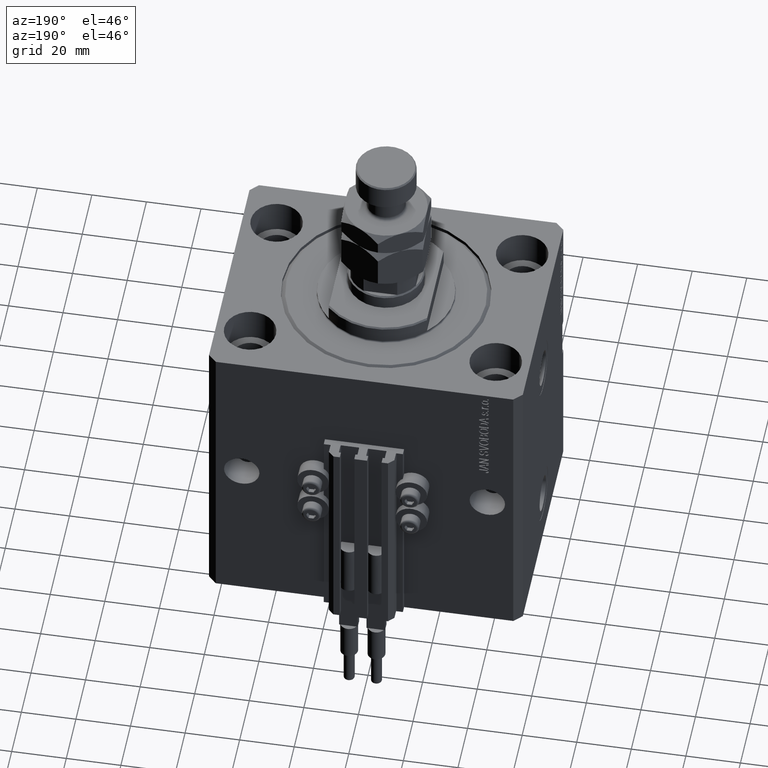
[diagram: clean part render]
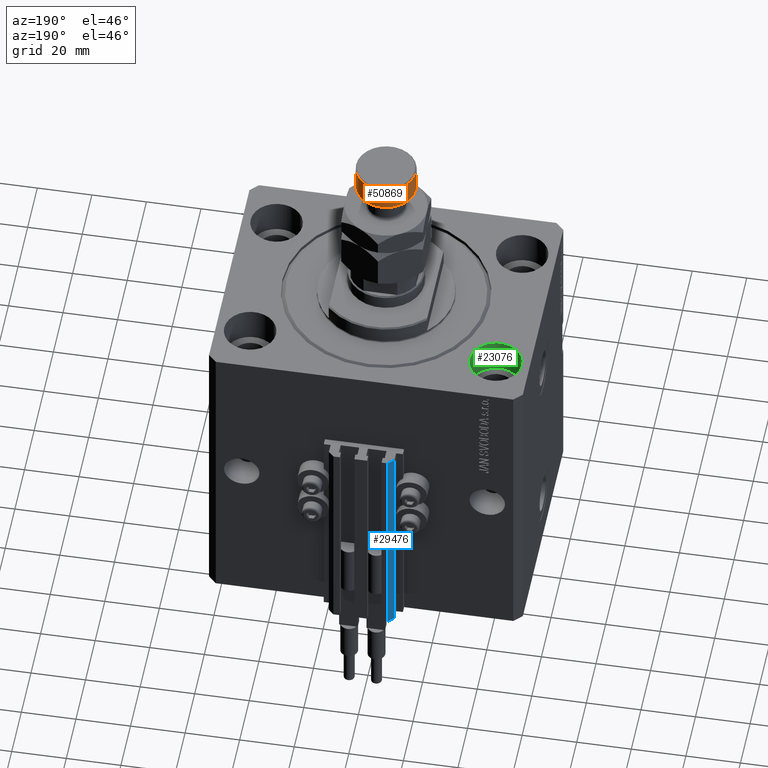
[diagram: same view with three faces highlighted in distinct colors, each labeled with its STEP entity id]
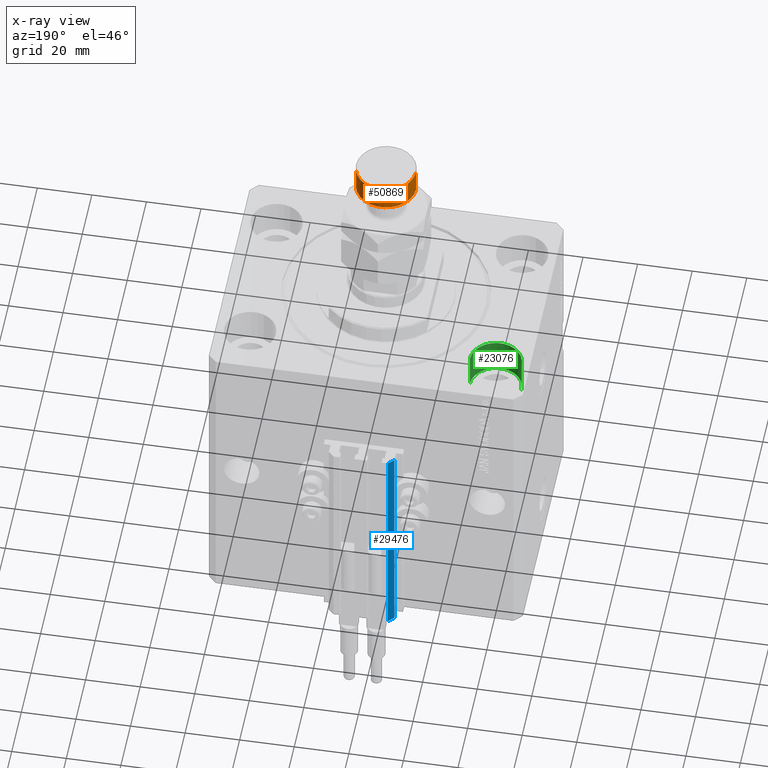
[diagram: x-ray of the same camera — body ghosted, the three highlighted faces saturated]
A machine part, auxiliary view with three faces highlighted in distinct colors.
The next image is the same camera in x-ray (body ghosted, the three faces saturated) — at least one of them is partly hidden behind the body in this view.
Their STEP definitions:

[orange] entity #50869 — the highlighted cylindrical surface (edge-blend (fillet) strip) has radius 11 mm, axis along (-0, -0, -1).
#2456 = DIRECTION ( 'NONE',  ( -1.000000000000000000, 0.000000000000000000, 0.000000000000000000 ) ) ;
#2924 = VERTEX_POINT ( 'NONE', #29450 ) ;
#5287 = CARTESIAN_POINT ( 'NONE',  ( -11.00000000000000000, 0.000000000000000000, 45.00000000000000711 ) ) ;
#5729 = EDGE_CURVE ( 'NONE', #26223, #48252, #50080, .T. ) ;
#5868 = CARTESIAN_POINT ( 'NONE',  ( 0.000000000000000000, 0.000000000000000000, 45.00000000000000711 ) ) ;
#6184 = CARTESIAN_POINT ( 'NONE',  ( 11.00000000000000000, 1.347111479062088405E-15, 45.00000000000000711 ) ) ;
#7854 = AXIS2_PLACEMENT_3D ( 'NONE', #13892, #14156, #46532 ) ;
#8702 = CIRCLE ( 'NONE', #7854, 11.00000000000000000 ) ;
#9359 = EDGE_CURVE ( 'NONE', #48252, #2924, #11202, .T. ) ;
#10128 = DIRECTION ( 'NONE',  ( -0.000000000000000000, -0.000000000000000000, -1.000000000000000000 ) ) ;
#10839 = DIRECTION ( 'NONE',  ( -0.000000000000000000, -0.000000000000000000, -1.000000000000000000 ) ) ;
#11202 = CIRCLE ( 'NONE', #25357, 11.00000000000000000 ) ;
#12125 = CARTESIAN_POINT ( 'NONE',  ( 0.000000000000000000, 0.000000000000000000, 35.50000000000001421 ) ) ;
#13892 = CARTESIAN_POINT ( 'NONE',  ( 0.000000000000000000, 0.000000000000000000, 44.50000000000001421 ) ) ;
#14156 = DIRECTION ( 'NONE',  ( 0.000000000000000000, 0.000000000000000000, -1.000000000000000000 ) ) ;
#19050 = VECTOR ( 'NONE', #49458, 1000.000000000000000 ) ;
#21493 = EDGE_CURVE ( 'NONE', #24916, #26223, #8702, .T. ) ;
#21820 = CYLINDRICAL_SURFACE ( 'NONE', #24302, 11.00000000000000000 ) ;
#23952 = CARTESIAN_POINT ( 'NONE',  ( 11.00000000000000000, 1.347111479062088405E-15, 35.50000000000001421 ) ) ;
#24302 = AXIS2_PLACEMENT_3D ( 'NONE', #5868, #10839, #2456 ) ;
#24916 = VERTEX_POINT ( 'NONE', #36729 ) ;
#25224 = ORIENTED_EDGE ( 'NONE', *, *, #9359, .T. ) ;
#25357 = AXIS2_PLACEMENT_3D ( 'NONE', #12125, #27016, #43989 ) ;
#25416 = LINE ( 'NONE', #5287, #19050 ) ;
#26223 = VERTEX_POINT ( 'NONE', #31416 ) ;
#26580 = EDGE_LOOP ( 'NONE', ( #26888, #28467, #25224, #37388 ) ) ;
#26888 = ORIENTED_EDGE ( 'NONE', *, *, #21493, .T. ) ;
#27016 = DIRECTION ( 'NONE',  ( -0.000000000000000000, -0.000000000000000000, 1.000000000000000000 ) ) ;
#28467 = ORIENTED_EDGE ( 'NONE', *, *, #5729, .T. ) ;
#29450 = CARTESIAN_POINT ( 'NONE',  ( -11.00000000000000000, 0.000000000000000000, 35.50000000000001421 ) ) ;
#31416 = CARTESIAN_POINT ( 'NONE',  ( 11.00000000000000000, 1.347111479062088405E-15, 44.50000000000001421 ) ) ;
#33576 = VECTOR ( 'NONE', #10128, 1000.000000000000000 ) ;
#36729 = CARTESIAN_POINT ( 'NONE',  ( -11.00000000000000000, 0.000000000000000000, 44.50000000000001421 ) ) ;
#37388 = ORIENTED_EDGE ( 'NONE', *, *, #44717, .F. ) ;
#41662 = FACE_OUTER_BOUND ( 'NONE', #26580, .T. ) ;
#43989 = DIRECTION ( 'NONE',  ( 1.000000000000000000, 0.000000000000000000, 0.000000000000000000 ) ) ;
#44717 = EDGE_CURVE ( 'NONE', #24916, #2924, #25416, .T. ) ;
#46532 = DIRECTION ( 'NONE',  ( 1.000000000000000000, 0.000000000000000000, 0.000000000000000000 ) ) ;
#48252 = VERTEX_POINT ( 'NONE', #23952 ) ;
#49458 = DIRECTION ( 'NONE',  ( -0.000000000000000000, -0.000000000000000000, -1.000000000000000000 ) ) ;
#50080 = LINE ( 'NONE', #6184, #33576 ) ;
#50869 = ADVANCED_FACE ( 'NONE', ( #41662 ), #21820, .T. ) ;

[blue] entity #29476 — the highlighted planar face has unit normal (-0.7071, 0.7071, 0).
#3465 = ORIENTED_EDGE ( 'NONE', *, *, #40092, .T. ) ;
#3688 = EDGE_CURVE ( 'NONE', #42839, #19992, #20849, .T. ) ;
#4495 = ORIENTED_EDGE ( 'NONE', *, *, #17345, .F. ) ;
#4650 = CARTESIAN_POINT ( 'NONE',  ( -10.00000000000000000, 52.99999999999999289, -115.0000000000000000 ) ) ;
#5110 = VECTOR ( 'NONE', #32356, 999.9999999999998863 ) ;
#5411 = LINE ( 'NONE', #21116, #18481 ) ;
#6003 = VECTOR ( 'NONE', #21075, 1000.000000000000000 ) ;
#7705 = DIRECTION ( 'NONE',  ( 0.000000000000000000, 0.000000000000000000, 1.000000000000000000 ) ) ;
#9598 = CARTESIAN_POINT ( 'NONE',  ( -12.00000000000000000, 50.99999999999999289, -115.0000000000000000 ) ) ;
#11909 = PLANE ( 'NONE',  #51439 ) ;
#14271 = ORIENTED_EDGE ( 'NONE', *, *, #3688, .T. ) ;
#16407 = LINE ( 'NONE', #48264, #6003 ) ;
#17345 = EDGE_CURVE ( 'NONE', #42839, #21765, #16407, .T. ) ;
#18481 = VECTOR ( 'NONE', #37044, 999.9999999999998863 ) ;
#19992 = VERTEX_POINT ( 'NONE', #9598 ) ;
#20696 = CARTESIAN_POINT ( 'NONE',  ( -10.00000000000000000, 52.99999999999999289, -115.0000000000000000 ) ) ;
#20849 = LINE ( 'NONE', #4650, #5110 ) ;
#21075 = DIRECTION ( 'NONE',  ( 0.000000000000000000, 0.000000000000000000, 1.000000000000000000 ) ) ;
#21116 = CARTESIAN_POINT ( 'NONE',  ( -10.00000000000000000, 52.99999999999999289, -33.00000000000000000 ) ) ;
#21765 = VERTEX_POINT ( 'NONE', #35354 ) ;
#26144 = VERTEX_POINT ( 'NONE', #42924 ) ;
#29476 = ADVANCED_FACE ( 'NONE', ( #31213 ), #11909, .T. ) ;
#31213 = FACE_OUTER_BOUND ( 'NONE', #41632, .T. ) ;
#32356 = DIRECTION ( 'NONE',  ( -0.7071067811865472397, -0.7071067811865479058, 0.000000000000000000 ) ) ;
#35354 = CARTESIAN_POINT ( 'NONE',  ( -10.00000000000000000, 52.99999999999999289, -33.00000000000000000 ) ) ;
#35405 = DIRECTION ( 'NONE',  ( -0.7071067811865477948, 0.7071067811865473507, 0.000000000000000000 ) ) ;
#35569 = VECTOR ( 'NONE', #7705, 1000.000000000000000 ) ;
#35644 = LINE ( 'NONE', #40064, #35569 ) ;
#37044 = DIRECTION ( 'NONE',  ( -0.7071067811865472397, -0.7071067811865479058, 0.000000000000000000 ) ) ;
#40064 = CARTESIAN_POINT ( 'NONE',  ( -12.00000000000000000, 50.99999999999999289, -115.0000000000000000 ) ) ;
#40092 = EDGE_CURVE ( 'NONE', #19992, #26144, #35644, .T. ) ;
#41632 = EDGE_LOOP ( 'NONE', ( #43192, #4495, #14271, #3465 ) ) ;
#42839 = VERTEX_POINT ( 'NONE', #20696 ) ;
#42924 = CARTESIAN_POINT ( 'NONE',  ( -12.00000000000000000, 50.99999999999999289, -33.00000000000000000 ) ) ;
#43192 = ORIENTED_EDGE ( 'NONE', *, *, #51665, .F. ) ;
#43510 = CARTESIAN_POINT ( 'NONE',  ( -10.00000000000000000, 52.99999999999999289, -115.0000000000000000 ) ) ;
#48264 = CARTESIAN_POINT ( 'NONE',  ( -10.00000000000000000, 52.99999999999999289, -115.0000000000000000 ) ) ;
#51357 = DIRECTION ( 'NONE',  ( -0.7071067811865473507, -0.7071067811865477948, 0.000000000000000000 ) ) ;
#51439 = AXIS2_PLACEMENT_3D ( 'NONE', #43510, #35405, #51357 ) ;
#51665 = EDGE_CURVE ( 'NONE', #21765, #26144, #5411, .T. ) ;

[green] entity #23076 — the highlighted cylindrical surface (edge-blend (fillet) strip) has radius 9.5 mm, axis along (0, 0, 1).
#698 = CARTESIAN_POINT ( 'NONE',  ( -45.00000000000000000, 27.50000000000000355, 0.000000000000000000 ) ) ;
#1764 = ORIENTED_EDGE ( 'NONE', *, *, #41985, .F. ) ;
#5550 = VERTEX_POINT ( 'NONE', #11218 ) ;
#5698 = DIRECTION ( 'NONE',  ( -0.000000000000000000, -0.000000000000000000, 1.000000000000000000 ) ) ;
#6356 = EDGE_LOOP ( 'NONE', ( #22237, #21511, #47865, #1764 ) ) ;
#7238 = CARTESIAN_POINT ( 'NONE',  ( -54.50000000000000000, 27.50000000000000355, 0.000000000000000000 ) ) ;
#8137 = CYLINDRICAL_SURFACE ( 'NONE', #44593, 9.500000000000001776 ) ;
#8373 = CARTESIAN_POINT ( 'NONE',  ( -35.50000000000000000, 27.50000000000000355, -13.00000000000000000 ) ) ;
#9759 = VECTOR ( 'NONE', #5698, 1000.000000000000000 ) ;
#11218 = CARTESIAN_POINT ( 'NONE',  ( -35.50000000000000000, 27.50000000000000355, 0.000000000000000000 ) ) ;
#12059 = FACE_OUTER_BOUND ( 'NONE', #6356, .T. ) ;
#13035 = LINE ( 'NONE', #37577, #9759 ) ;
#15207 = DIRECTION ( 'NONE',  ( -0.000000000000000000, -0.000000000000000000, 1.000000000000000000 ) ) ;
#20574 = DIRECTION ( 'NONE',  ( 1.000000000000000000, 0.000000000000000000, 0.000000000000000000 ) ) ;
#21511 = ORIENTED_EDGE ( 'NONE', *, *, #40851, .T. ) ;
#22237 = ORIENTED_EDGE ( 'NONE', *, *, #48851, .F. ) ;
#23076 = ADVANCED_FACE ( 'NONE', ( #12059 ), #8137, .F. ) ;
#23308 = CIRCLE ( 'NONE', #29951, 9.500000000000001776 ) ;
#26944 = CARTESIAN_POINT ( 'NONE',  ( -45.00000000000000000, 27.50000000000000355, -13.00000000000000000 ) ) ;
#29951 = AXIS2_PLACEMENT_3D ( 'NONE', #698, #51435, #20574 ) ;
#30024 = CIRCLE ( 'NONE', #47585, 9.500000000000001776 ) ;
#30859 = DIRECTION ( 'NONE',  ( 0.000000000000000000, 0.000000000000000000, 1.000000000000000000 ) ) ;
#32477 = CARTESIAN_POINT ( 'NONE',  ( -54.50000000000000000, 27.50000000000000355, -13.00000000000000000 ) ) ;
#37577 = CARTESIAN_POINT ( 'NONE',  ( -35.50000000000000000, 27.50000000000000355, -13.00000000000000000 ) ) ;
#37678 = DIRECTION ( 'NONE',  ( 1.000000000000000000, 0.000000000000000000, 0.000000000000000000 ) ) ;
#37855 = VERTEX_POINT ( 'NONE', #7238 ) ;
#38962 = DIRECTION ( 'NONE',  ( 1.000000000000000000, 0.000000000000000000, 0.000000000000000000 ) ) ;
#40071 = LINE ( 'NONE', #32477, #49775 ) ;
#40851 = EDGE_CURVE ( 'NONE', #41089, #37855, #40071, .T. ) ;
#41089 = VERTEX_POINT ( 'NONE', #44636 ) ;
#41985 = EDGE_CURVE ( 'NONE', #46915, #5550, #13035, .T. ) ;
#43494 = DIRECTION ( 'NONE',  ( -0.000000000000000000, -0.000000000000000000, 1.000000000000000000 ) ) ;
#44593 = AXIS2_PLACEMENT_3D ( 'NONE', #26944, #15207, #38962 ) ;
#44636 = CARTESIAN_POINT ( 'NONE',  ( -54.50000000000000000, 27.50000000000000355, -13.00000000000000000 ) ) ;
#46915 = VERTEX_POINT ( 'NONE', #8373 ) ;
#47272 = EDGE_CURVE ( 'NONE', #37855, #5550, #23308, .T. ) ;
#47585 = AXIS2_PLACEMENT_3D ( 'NONE', #50741, #30859, #37678 ) ;
#47865 = ORIENTED_EDGE ( 'NONE', *, *, #47272, .T. ) ;
#48851 = EDGE_CURVE ( 'NONE', #41089, #46915, #30024, .T. ) ;
#49775 = VECTOR ( 'NONE', #43494, 1000.000000000000000 ) ;
#50741 = CARTESIAN_POINT ( 'NONE',  ( -45.00000000000000000, 27.50000000000000355, -13.00000000000000000 ) ) ;
#51435 = DIRECTION ( 'NONE',  ( 0.000000000000000000, 0.000000000000000000, 1.000000000000000000 ) ) ;